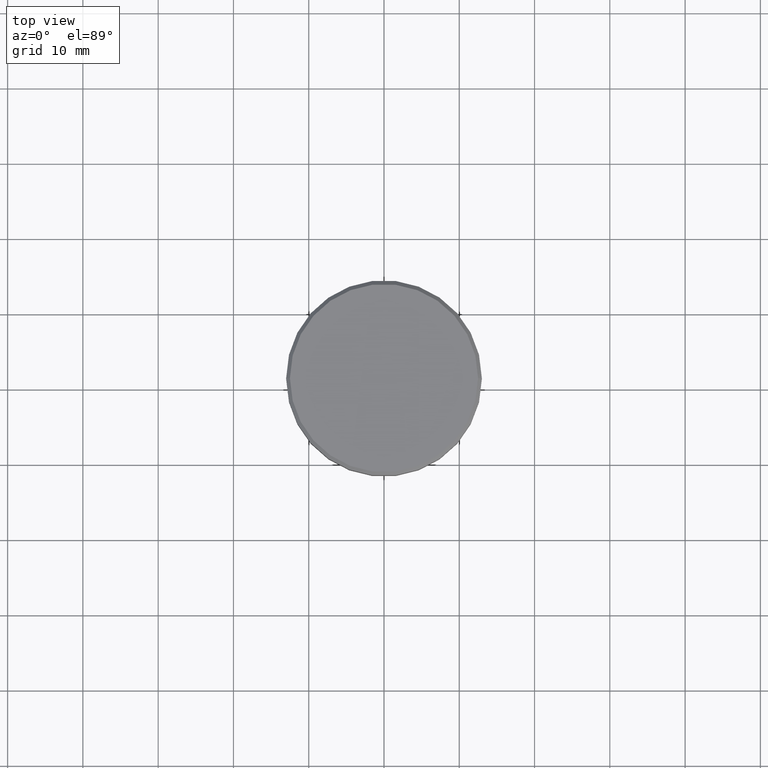
[diagram: clean part render]
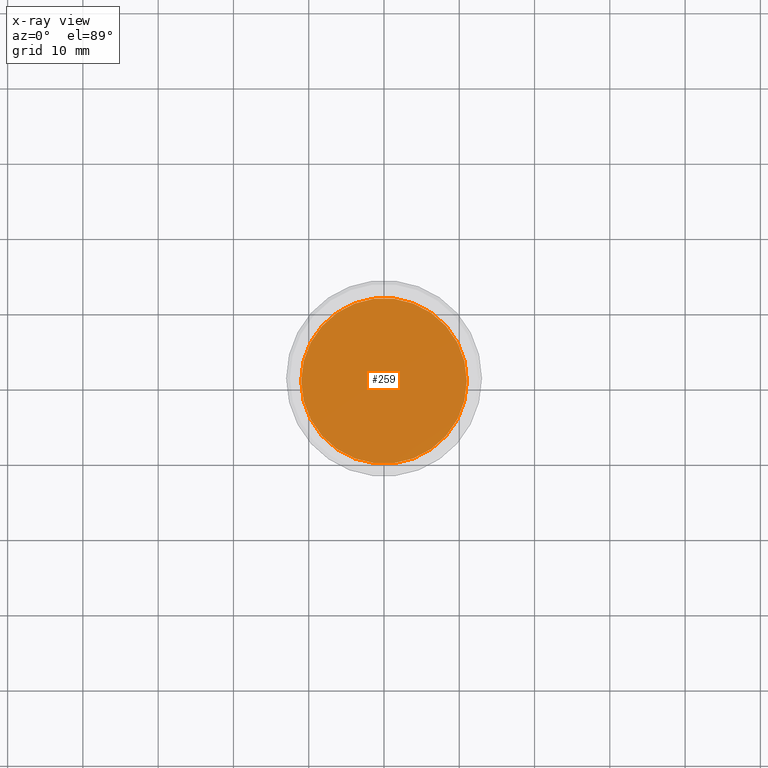
[diagram: x-ray — body ghosted, one internal face saturated and labeled with its STEP entity id]
A machine part, top view, then the same camera in x-ray: the body is ghosted and one INTERNAL B-rep face — a face not visible from any outside direction — is saturated and labeled: STEP entity #259.
In plain terms, the highlighted planar face has unit normal (0, 0, -1).
Its self-contained STEP definition (entity closure, byte-faithful):
#6 = DIRECTION ( 'NONE',  ( 1.000000000000000000, 0.000000000000000000, 0.000000000000000000 ) ) ;
#69 = AXIS2_PLACEMENT_3D ( 'NONE', #96, #682, #211 ) ;
#96 = CARTESIAN_POINT ( 'NONE',  ( 0.000000000000000000, 0.000000000000000000, -22.50000000000000000 ) ) ;
#99 = AXIS2_PLACEMENT_3D ( 'NONE', #893, #741, #6 ) ;
#151 = AXIS2_PLACEMENT_3D ( 'NONE', #255, #988, #168 ) ;
#168 = DIRECTION ( 'NONE',  ( -1.000000000000000000, 0.000000000000000000, -0.000000000000000000 ) ) ;
#211 = DIRECTION ( 'NONE',  ( 1.000000000000000000, 0.000000000000000000, 0.000000000000000000 ) ) ;
#255 = CARTESIAN_POINT ( 'NONE',  ( 0.000000000000000000, -3.469446951953614189E-15, -22.50000000000000000 ) ) ;
#259 = ADVANCED_FACE ( 'NONE', ( #830 ), #923, .F. ) ;
#406 = EDGE_CURVE ( 'NONE', #951, #583, #1002, .T. ) ;
#451 = CIRCLE ( 'NONE', #99, 11.00000000000000000 ) ;
#545 = CARTESIAN_POINT ( 'NONE',  ( -10.99999999999999822, 1.347111479062088405E-15, -22.50000000000000000 ) ) ;
#583 = VERTEX_POINT ( 'NONE', #714 ) ;
#682 = DIRECTION ( 'NONE',  ( -0.000000000000000000, -0.000000000000000000, 1.000000000000000000 ) ) ;
#685 = EDGE_CURVE ( 'NONE', #583, #951, #451, .T. ) ;
#714 = CARTESIAN_POINT ( 'NONE',  ( 11.00000000000000000, 0.000000000000000000, -22.50000000000000000 ) ) ;
#741 = DIRECTION ( 'NONE',  ( -0.000000000000000000, -0.000000000000000000, 1.000000000000000000 ) ) ;
#750 = ORIENTED_EDGE ( 'NONE', *, *, #685, .T. ) ;
#759 = ORIENTED_EDGE ( 'NONE', *, *, #406, .T. ) ;
#830 = FACE_OUTER_BOUND ( 'NONE', #1010, .T. ) ;
#893 = CARTESIAN_POINT ( 'NONE',  ( 0.000000000000000000, 0.000000000000000000, -22.50000000000000000 ) ) ;
#923 = PLANE ( 'NONE',  #151 ) ;
#951 = VERTEX_POINT ( 'NONE', #545 ) ;
#988 = DIRECTION ( 'NONE',  ( 0.000000000000000000, 0.000000000000000000, -1.000000000000000000 ) ) ;
#1002 = CIRCLE ( 'NONE', #69, 11.00000000000000000 ) ;
#1010 = EDGE_LOOP ( 'NONE', ( #750, #759 ) ) ;